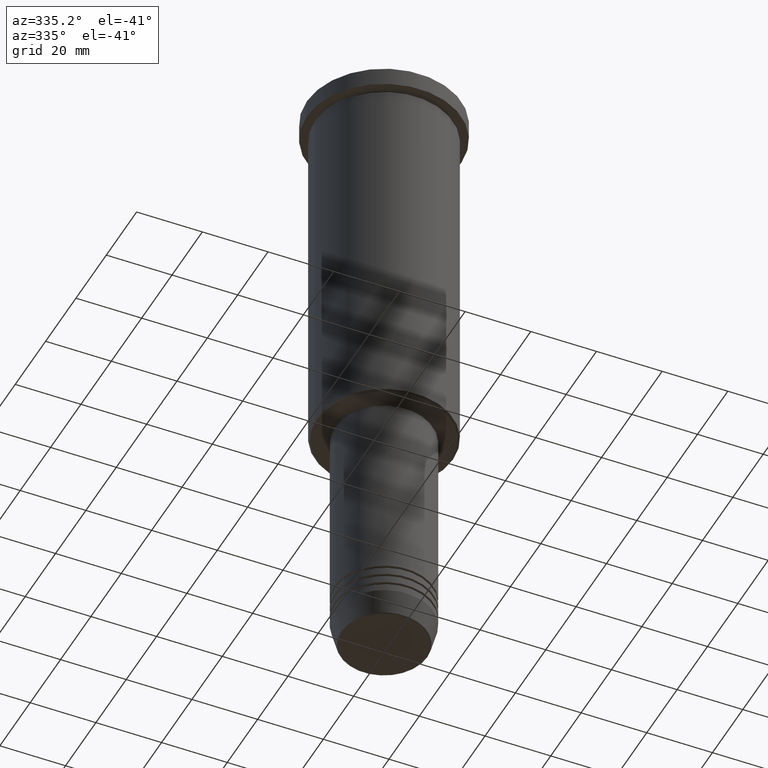
[diagram: clean part render]
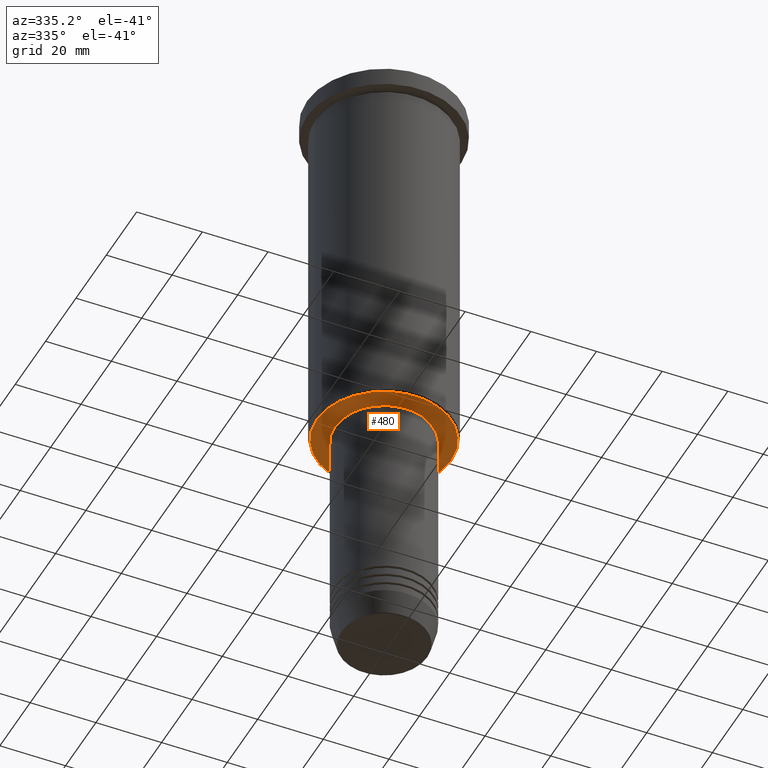
[diagram: same view with one face highlighted and labeled with its STEP entity id]
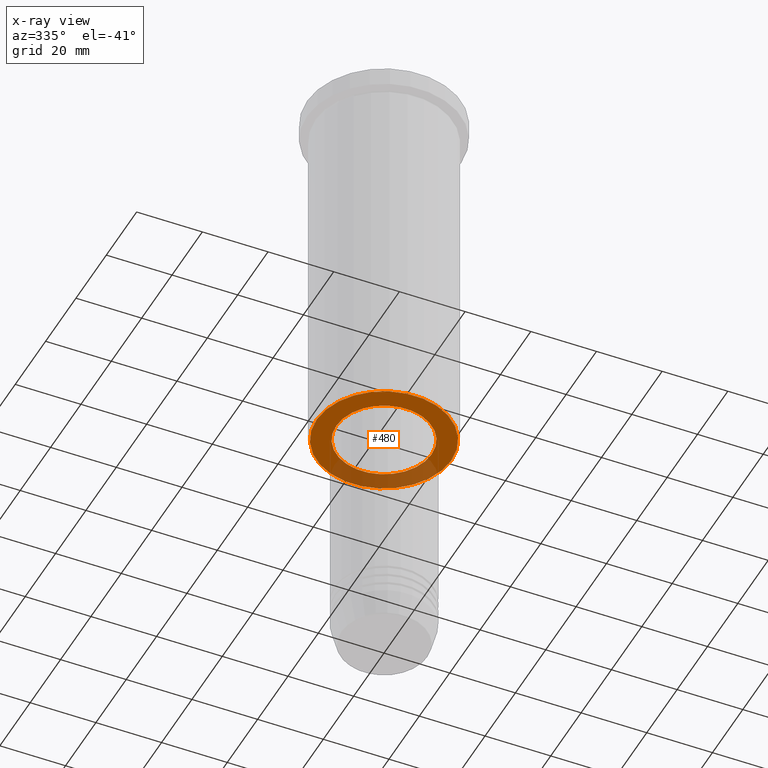
[diagram: x-ray of the same camera — body ghosted, the highlighted face saturated]
A machine part, auxiliary view. The second image highlights one B-rep face of the part: STEP entity #480.
The next image is the same camera in x-ray: the body ghosted, the highlighted face saturated — about 29% of this face is hidden behind the body in this view.
In plain terms, the highlighted planar face has unit normal (0, 0, -1).
Its self-contained STEP definition (entity closure, byte-faithful):
#21 = DIRECTION ( 'NONE',  ( 1.000000000000000000, 0.000000000000000000, 0.000000000000000000 ) ) ;
#69 = PLANE ( 'NONE',  #799 ) ;
#74 = FACE_BOUND ( 'NONE', #857, .T. ) ;
#76 = CARTESIAN_POINT ( 'NONE',  ( 14.49999999999999822, 0.000000000000000000, -116.0000000000000142 ) ) ;
#77 = EDGE_CURVE ( 'NONE', #125, #467, #296, .T. ) ;
#79 = CIRCLE ( 'NONE', #141, 20.49999999999998934 ) ;
#90 = DIRECTION ( 'NONE',  ( 0.000000000000000000, 0.000000000000000000, -1.000000000000000000 ) ) ;
#125 = VERTEX_POINT ( 'NONE', #76 ) ;
#131 = EDGE_CURVE ( 'NONE', #175, #515, #79, .T. ) ;
#141 = AXIS2_PLACEMENT_3D ( 'NONE', #1169, #90, #363 ) ;
#157 = DIRECTION ( 'NONE',  ( 0.000000000000000000, 0.000000000000000000, -1.000000000000000000 ) ) ;
#160 = AXIS2_PLACEMENT_3D ( 'NONE', #1183, #912, #180 ) ;
#175 = VERTEX_POINT ( 'NONE', #848 ) ;
#180 = DIRECTION ( 'NONE',  ( 1.000000000000000000, 0.000000000000000000, 0.000000000000000000 ) ) ;
#202 = DIRECTION ( 'NONE',  ( 0.000000000000000000, 0.000000000000000000, -1.000000000000000000 ) ) ;
#259 = ORIENTED_EDGE ( 'NONE', *, *, #1107, .T. ) ;
#296 = CIRCLE ( 'NONE', #160, 14.49999999999999822 ) ;
#363 = DIRECTION ( 'NONE',  ( -1.000000000000000000, 0.000000000000000000, 0.000000000000000000 ) ) ;
#383 = DIRECTION ( 'NONE',  ( -0.000000000000000000, -0.000000000000000000, 1.000000000000000000 ) ) ;
#443 = ORIENTED_EDGE ( 'NONE', *, *, #1158, .T. ) ;
#445 = CARTESIAN_POINT ( 'NONE',  ( 0.000000000000000000, 21.00000000000000000, -116.0000000000000142 ) ) ;
#467 = VERTEX_POINT ( 'NONE', #717 ) ;
#480 = ADVANCED_FACE ( 'NONE', ( #541, #74 ), #69, .T. ) ;
#515 = VERTEX_POINT ( 'NONE', #1087 ) ;
#541 = FACE_OUTER_BOUND ( 'NONE', #1115, .T. ) ;
#568 = CIRCLE ( 'NONE', #627, 14.49999999999999822 ) ;
#588 = AXIS2_PLACEMENT_3D ( 'NONE', #647, #202, #1001 ) ;
#627 = AXIS2_PLACEMENT_3D ( 'NONE', #1018, #383, #21 ) ;
#647 = CARTESIAN_POINT ( 'NONE',  ( 0.000000000000000000, 0.000000000000000000, -116.0000000000000142 ) ) ;
#717 = CARTESIAN_POINT ( 'NONE',  ( -14.49999999999999822, 1.775737858763662015E-15, -116.0000000000000142 ) ) ;
#799 = AXIS2_PLACEMENT_3D ( 'NONE', #445, #157, #905 ) ;
#848 = CARTESIAN_POINT ( 'NONE',  ( -20.49999999999998934, 2.541142108230757480E-15, -116.0000000000000142 ) ) ;
#857 = EDGE_LOOP ( 'NONE', ( #1140, #259 ) ) ;
#905 = DIRECTION ( 'NONE',  ( -1.000000000000000000, 0.000000000000000000, -0.000000000000000000 ) ) ;
#912 = DIRECTION ( 'NONE',  ( -0.000000000000000000, -0.000000000000000000, 1.000000000000000000 ) ) ;
#979 = CIRCLE ( 'NONE', #588, 20.49999999999998934 ) ;
#1001 = DIRECTION ( 'NONE',  ( -1.000000000000000000, 0.000000000000000000, 0.000000000000000000 ) ) ;
#1018 = CARTESIAN_POINT ( 'NONE',  ( 0.000000000000000000, 0.000000000000000000, -116.0000000000000142 ) ) ;
#1087 = CARTESIAN_POINT ( 'NONE',  ( 20.49999999999998934, 0.000000000000000000, -116.0000000000000142 ) ) ;
#1107 = EDGE_CURVE ( 'NONE', #467, #125, #568, .T. ) ;
#1115 = EDGE_LOOP ( 'NONE', ( #443, #1160 ) ) ;
#1140 = ORIENTED_EDGE ( 'NONE', *, *, #77, .T. ) ;
#1158 = EDGE_CURVE ( 'NONE', #515, #175, #979, .T. ) ;
#1160 = ORIENTED_EDGE ( 'NONE', *, *, #131, .T. ) ;
#1169 = CARTESIAN_POINT ( 'NONE',  ( 0.000000000000000000, 0.000000000000000000, -116.0000000000000142 ) ) ;
#1183 = CARTESIAN_POINT ( 'NONE',  ( 0.000000000000000000, 0.000000000000000000, -116.0000000000000142 ) ) ;